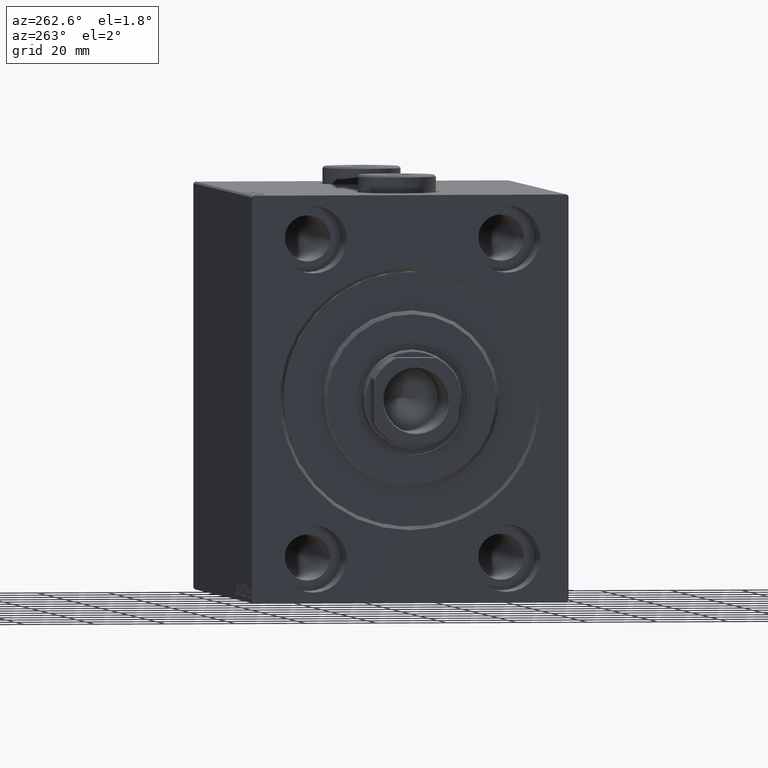
[diagram: clean part render]
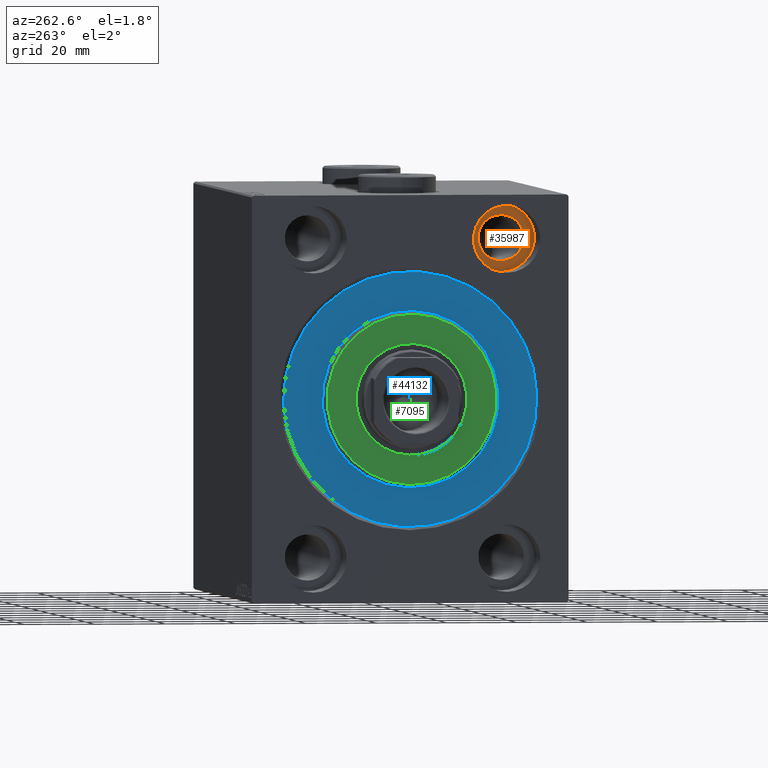
[diagram: same view with three faces highlighted in distinct colors, each labeled with its STEP entity id]
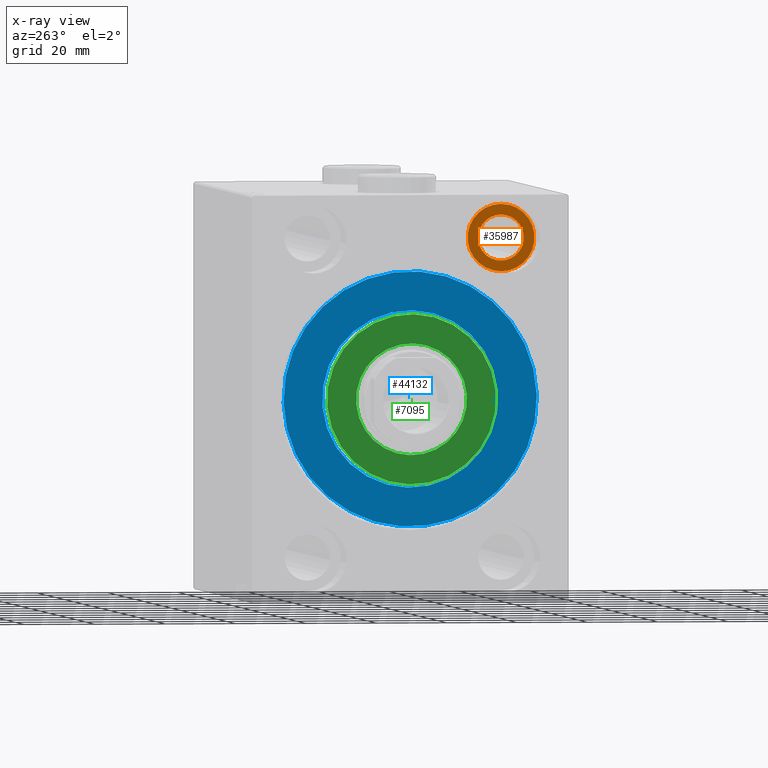
[diagram: x-ray of the same camera — body ghosted, the three highlighted faces saturated]
A machine part, auxiliary view with three faces highlighted in distinct colors.
The next image is the same camera in x-ray (body ghosted, the three faces saturated) — at least one of them is partly hidden behind the body in this view.
Their STEP definitions:

[orange] entity #35987 — the highlighted planar face has unit normal (-1, 0, 0).
#317 = AXIS2_PLACEMENT_3D ( 'NONE', #5732, #26336, #5499 ) ;
#1449 = ORIENTED_EDGE ( 'NONE', *, *, #39420, .F. ) ;
#1490 = VERTEX_POINT ( 'NONE', #12083 ) ;
#1990 = CIRCLE ( 'NONE', #35633, 9.500000000000001776 ) ;
#5044 = PLANE ( 'NONE',  #317 ) ;
#5351 = AXIS2_PLACEMENT_3D ( 'NONE', #30640, #13695, #27649 ) ;
#5499 = DIRECTION ( 'NONE',  ( 0.000000000000000000, 0.000000000000000000, 1.000000000000000000 ) ) ;
#5567 = VERTEX_POINT ( 'NONE', #7904 ) ;
#5732 = CARTESIAN_POINT ( 'NONE',  ( 13.00000000000000000, 0.000000000000000000, 0.000000000000000000 ) ) ;
#6800 = VERTEX_POINT ( 'NONE', #7998 ) ;
#7904 = CARTESIAN_POINT ( 'NONE',  ( 13.00000000000000000, -27.49999999999998934, 54.50000000000000711 ) ) ;
#7998 = CARTESIAN_POINT ( 'NONE',  ( 12.99999999999999822, -27.49999999999998934, 51.50000000000000711 ) ) ;
#9164 = FACE_BOUND ( 'NONE', #29505, .T. ) ;
#9334 = EDGE_CURVE ( 'NONE', #1490, #6800, #17792, .T. ) ;
#9620 = DIRECTION ( 'NONE',  ( 0.000000000000000000, 0.000000000000000000, 1.000000000000000000 ) ) ;
#9871 = CIRCLE ( 'NONE', #15745, 6.499999999999999112 ) ;
#12083 = CARTESIAN_POINT ( 'NONE',  ( 12.99999999999999822, -27.49999999999998934, 38.50000000000000711 ) ) ;
#13392 = DIRECTION ( 'NONE',  ( 0.000000000000000000, 0.000000000000000000, 1.000000000000000000 ) ) ;
#13695 = DIRECTION ( 'NONE',  ( -1.000000000000000000, 0.000000000000000000, 0.000000000000000000 ) ) ;
#14072 = ORIENTED_EDGE ( 'NONE', *, *, #43930, .T. ) ;
#14386 = DIRECTION ( 'NONE',  ( 0.000000000000000000, 0.000000000000000000, 1.000000000000000000 ) ) ;
#15745 = AXIS2_PLACEMENT_3D ( 'NONE', #45089, #17381, #14386 ) ;
#17183 = CARTESIAN_POINT ( 'NONE',  ( 13.00000000000000000, -27.49999999999998934, 45.00000000000000711 ) ) ;
#17381 = DIRECTION ( 'NONE',  ( -1.000000000000000000, 0.000000000000000000, 0.000000000000000000 ) ) ;
#17792 = CIRCLE ( 'NONE', #5351, 6.499999999999999112 ) ;
#23730 = CIRCLE ( 'NONE', #36884, 9.500000000000001776 ) ;
#26336 = DIRECTION ( 'NONE',  ( -1.000000000000000000, 0.000000000000000000, 0.000000000000000000 ) ) ;
#27649 = DIRECTION ( 'NONE',  ( 0.000000000000000000, 0.000000000000000000, 1.000000000000000000 ) ) ;
#27847 = ORIENTED_EDGE ( 'NONE', *, *, #32331, .T. ) ;
#29505 = EDGE_LOOP ( 'NONE', ( #1449, #43343 ) ) ;
#30640 = CARTESIAN_POINT ( 'NONE',  ( 12.99999999999999822, -27.49999999999998934, 45.00000000000000711 ) ) ;
#31899 = VERTEX_POINT ( 'NONE', #41615 ) ;
#32331 = EDGE_CURVE ( 'NONE', #5567, #31899, #23730, .T. ) ;
#33778 = DIRECTION ( 'NONE',  ( -1.000000000000000000, 0.000000000000000000, 0.000000000000000000 ) ) ;
#35633 = AXIS2_PLACEMENT_3D ( 'NONE', #17183, #41007, #9620 ) ;
#35987 = ADVANCED_FACE ( 'NONE', ( #9164, #43753 ), #5044, .T. ) ;
#36884 = AXIS2_PLACEMENT_3D ( 'NONE', #37665, #33778, #13392 ) ;
#37665 = CARTESIAN_POINT ( 'NONE',  ( 13.00000000000000000, -27.49999999999998934, 45.00000000000000711 ) ) ;
#38394 = EDGE_LOOP ( 'NONE', ( #27847, #14072 ) ) ;
#39420 = EDGE_CURVE ( 'NONE', #6800, #1490, #9871, .T. ) ;
#41007 = DIRECTION ( 'NONE',  ( -1.000000000000000000, 0.000000000000000000, 0.000000000000000000 ) ) ;
#41615 = CARTESIAN_POINT ( 'NONE',  ( 13.00000000000000000, -27.49999999999998934, 35.50000000000000711 ) ) ;
#43343 = ORIENTED_EDGE ( 'NONE', *, *, #9334, .F. ) ;
#43753 = FACE_OUTER_BOUND ( 'NONE', #38394, .T. ) ;
#43930 = EDGE_CURVE ( 'NONE', #31899, #5567, #1990, .T. ) ;
#45089 = CARTESIAN_POINT ( 'NONE',  ( 12.99999999999999822, -27.49999999999998934, 45.00000000000000711 ) ) ;

[blue] entity #44132 — the highlighted planar face has unit normal (1, 0, -0).
#2961 = CARTESIAN_POINT ( 'NONE',  ( 0.000000000000000000, 0.000000000000000000, -36.00000000000000000 ) ) ;
#3639 = DIRECTION ( 'NONE',  ( 0.000000000000000000, 0.000000000000000000, -1.000000000000000000 ) ) ;
#3852 = VERTEX_POINT ( 'NONE', #2961 ) ;
#4235 = CARTESIAN_POINT ( 'NONE',  ( 0.000000000000000000, 0.000000000000000000, 0.000000000000000000 ) ) ;
#4283 = ORIENTED_EDGE ( 'NONE', *, *, #13473, .F. ) ;
#4311 = ORIENTED_EDGE ( 'NONE', *, *, #4664, .F. ) ;
#4664 = EDGE_CURVE ( 'NONE', #39990, #3852, #10351, .T. ) ;
#4684 = DIRECTION ( 'NONE',  ( 0.000000000000000000, 0.000000000000000000, 1.000000000000000000 ) ) ;
#5238 = PLANE ( 'NONE',  #6376 ) ;
#6376 = AXIS2_PLACEMENT_3D ( 'NONE', #43726, #13397, #27355 ) ;
#7327 = DIRECTION ( 'NONE',  ( 1.000000000000000000, -0.000000000000000000, 0.000000000000000000 ) ) ;
#7666 = DIRECTION ( 'NONE',  ( 0.000000000000000000, 0.000000000000000000, 1.000000000000000000 ) ) ;
#7818 = ORIENTED_EDGE ( 'NONE', *, *, #43879, .F. ) ;
#8114 = CARTESIAN_POINT ( 'NONE',  ( 0.000000000000000000, 0.000000000000000000, 0.000000000000000000 ) ) ;
#8793 = EDGE_LOOP ( 'NONE', ( #4283, #4311 ) ) ;
#10351 = CIRCLE ( 'NONE', #14744, 36.00000000000000000 ) ;
#10948 = CARTESIAN_POINT ( 'NONE',  ( 0.000000000000000000, 3.061616997868383043E-15, -25.00000000000000000 ) ) ;
#13397 = DIRECTION ( 'NONE',  ( -1.000000000000000000, 0.000000000000000000, 0.000000000000000000 ) ) ;
#13473 = EDGE_CURVE ( 'NONE', #3852, #39990, #30323, .T. ) ;
#13738 = DIRECTION ( 'NONE',  ( 1.000000000000000000, -0.000000000000000000, 0.000000000000000000 ) ) ;
#14014 = EDGE_CURVE ( 'NONE', #35191, #20263, #26669, .T. ) ;
#14205 = DIRECTION ( 'NONE',  ( 0.000000000000000000, 0.000000000000000000, -1.000000000000000000 ) ) ;
#14744 = AXIS2_PLACEMENT_3D ( 'NONE', #4235, #28504, #7666 ) ;
#17151 = CARTESIAN_POINT ( 'NONE',  ( 0.000000000000000000, 4.408728476930470856E-15, 36.00000000000000000 ) ) ;
#19554 = ORIENTED_EDGE ( 'NONE', *, *, #14014, .F. ) ;
#20263 = VERTEX_POINT ( 'NONE', #10948 ) ;
#22102 = DIRECTION ( 'NONE',  ( -1.000000000000000000, 0.000000000000000000, 0.000000000000000000 ) ) ;
#22299 = AXIS2_PLACEMENT_3D ( 'NONE', #41913, #7327, #14205 ) ;
#24461 = AXIS2_PLACEMENT_3D ( 'NONE', #8114, #22102, #4684 ) ;
#26669 = CIRCLE ( 'NONE', #22299, 25.00000000000000000 ) ;
#27355 = DIRECTION ( 'NONE',  ( 0.000000000000000000, 0.000000000000000000, 1.000000000000000000 ) ) ;
#28504 = DIRECTION ( 'NONE',  ( -1.000000000000000000, 0.000000000000000000, 0.000000000000000000 ) ) ;
#30323 = CIRCLE ( 'NONE', #24461, 36.00000000000000000 ) ;
#31207 = AXIS2_PLACEMENT_3D ( 'NONE', #41676, #13738, #3639 ) ;
#33408 = CIRCLE ( 'NONE', #31207, 25.00000000000000000 ) ;
#35191 = VERTEX_POINT ( 'NONE', #42774 ) ;
#36833 = FACE_OUTER_BOUND ( 'NONE', #8793, .T. ) ;
#38161 = EDGE_LOOP ( 'NONE', ( #19554, #7818 ) ) ;
#39990 = VERTEX_POINT ( 'NONE', #17151 ) ;
#40286 = FACE_BOUND ( 'NONE', #38161, .T. ) ;
#41676 = CARTESIAN_POINT ( 'NONE',  ( 0.000000000000000000, 0.000000000000000000, 0.000000000000000000 ) ) ;
#41913 = CARTESIAN_POINT ( 'NONE',  ( 0.000000000000000000, 0.000000000000000000, 0.000000000000000000 ) ) ;
#42774 = CARTESIAN_POINT ( 'NONE',  ( 0.000000000000000000, 0.000000000000000000, 25.00000000000000000 ) ) ;
#43726 = CARTESIAN_POINT ( 'NONE',  ( 0.000000000000000000, 0.000000000000000000, 0.000000000000000000 ) ) ;
#43879 = EDGE_CURVE ( 'NONE', #20263, #35191, #33408, .T. ) ;
#44132 = ADVANCED_FACE ( 'NONE', ( #40286, #36833 ), #5238, .F. ) ;

[green] entity #7095 — the highlighted planar face has unit normal (-1, 0, 0).
#330 = DIRECTION ( 'NONE',  ( 0.000000000000000000, 0.000000000000000000, -1.000000000000000000 ) ) ;
#1196 = EDGE_LOOP ( 'NONE', ( #23589, #25424 ) ) ;
#1780 = CARTESIAN_POINT ( 'NONE',  ( 3.000000000000000000, 0.000000000000000000, 0.000000000000000000 ) ) ;
#1803 = CIRCLE ( 'NONE', #13520, 15.75000000000000000 ) ;
#3165 = VERTEX_POINT ( 'NONE', #11654 ) ;
#3304 = EDGE_CURVE ( 'NONE', #7463, #38145, #41029, .T. ) ;
#5697 = DIRECTION ( 'NONE',  ( 0.000000000000000000, 0.000000000000000000, -1.000000000000000000 ) ) ;
#6651 = AXIS2_PLACEMENT_3D ( 'NONE', #1780, #27181, #5697 ) ;
#7095 = ADVANCED_FACE ( 'NONE', ( #15231, #8345 ), #12247, .T. ) ;
#7217 = DIRECTION ( 'NONE',  ( -1.000000000000000000, 0.000000000000000000, -0.000000000000000000 ) ) ;
#7463 = VERTEX_POINT ( 'NONE', #40583 ) ;
#8345 = FACE_BOUND ( 'NONE', #1196, .T. ) ;
#10047 = EDGE_CURVE ( 'NONE', #3165, #27116, #17069, .T. ) ;
#11654 = CARTESIAN_POINT ( 'NONE',  ( 3.000000000000000000, 0.000000000000000000, 24.00000000000000711 ) ) ;
#12247 = PLANE ( 'NONE',  #12622 ) ;
#12622 = AXIS2_PLACEMENT_3D ( 'NONE', #22326, #29180, #12690 ) ;
#12690 = DIRECTION ( 'NONE',  ( 0.000000000000000000, 0.000000000000000000, -1.000000000000000000 ) ) ;
#13006 = CARTESIAN_POINT ( 'NONE',  ( 3.000000000000000000, 1.928818708657080950E-15, -15.75000000000000000 ) ) ;
#13101 = ORIENTED_EDGE ( 'NONE', *, *, #10047, .T. ) ;
#13520 = AXIS2_PLACEMENT_3D ( 'NONE', #38590, #7217, #330 ) ;
#15231 = FACE_OUTER_BOUND ( 'NONE', #25256, .T. ) ;
#17069 = CIRCLE ( 'NONE', #42648, 24.00000000000000711 ) ;
#18204 = EDGE_CURVE ( 'NONE', #38145, #7463, #1803, .T. ) ;
#21015 = DIRECTION ( 'NONE',  ( 0.000000000000000000, 0.000000000000000000, -1.000000000000000000 ) ) ;
#21247 = CARTESIAN_POINT ( 'NONE',  ( 3.000000000000000000, 0.000000000000000000, 0.000000000000000000 ) ) ;
#22306 = CIRCLE ( 'NONE', #23032, 24.00000000000000711 ) ;
#22326 = CARTESIAN_POINT ( 'NONE',  ( 3.000000000000000000, 0.000000000000000000, 0.000000000000000000 ) ) ;
#23032 = AXIS2_PLACEMENT_3D ( 'NONE', #28249, #42673, #32353 ) ;
#23589 = ORIENTED_EDGE ( 'NONE', *, *, #3304, .T. ) ;
#24885 = DIRECTION ( 'NONE',  ( 1.000000000000000000, -0.000000000000000000, 0.000000000000000000 ) ) ;
#25256 = EDGE_LOOP ( 'NONE', ( #13101, #30101 ) ) ;
#25424 = ORIENTED_EDGE ( 'NONE', *, *, #18204, .T. ) ;
#25524 = CARTESIAN_POINT ( 'NONE',  ( 3.000000000000000000, 3.000384657911015469E-15, -24.00000000000000711 ) ) ;
#27116 = VERTEX_POINT ( 'NONE', #25524 ) ;
#27181 = DIRECTION ( 'NONE',  ( -1.000000000000000000, 0.000000000000000000, -0.000000000000000000 ) ) ;
#28249 = CARTESIAN_POINT ( 'NONE',  ( 3.000000000000000000, 0.000000000000000000, 0.000000000000000000 ) ) ;
#29180 = DIRECTION ( 'NONE',  ( 1.000000000000000000, -0.000000000000000000, 0.000000000000000000 ) ) ;
#30101 = ORIENTED_EDGE ( 'NONE', *, *, #37757, .T. ) ;
#32353 = DIRECTION ( 'NONE',  ( 0.000000000000000000, 0.000000000000000000, -1.000000000000000000 ) ) ;
#37757 = EDGE_CURVE ( 'NONE', #27116, #3165, #22306, .T. ) ;
#38145 = VERTEX_POINT ( 'NONE', #13006 ) ;
#38590 = CARTESIAN_POINT ( 'NONE',  ( 3.000000000000000000, 0.000000000000000000, 0.000000000000000000 ) ) ;
#40583 = CARTESIAN_POINT ( 'NONE',  ( 3.000000000000000000, 0.000000000000000000, 15.75000000000000000 ) ) ;
#41029 = CIRCLE ( 'NONE', #6651, 15.75000000000000000 ) ;
#42648 = AXIS2_PLACEMENT_3D ( 'NONE', #21247, #24885, #21015 ) ;
#42673 = DIRECTION ( 'NONE',  ( 1.000000000000000000, -0.000000000000000000, 0.000000000000000000 ) ) ;